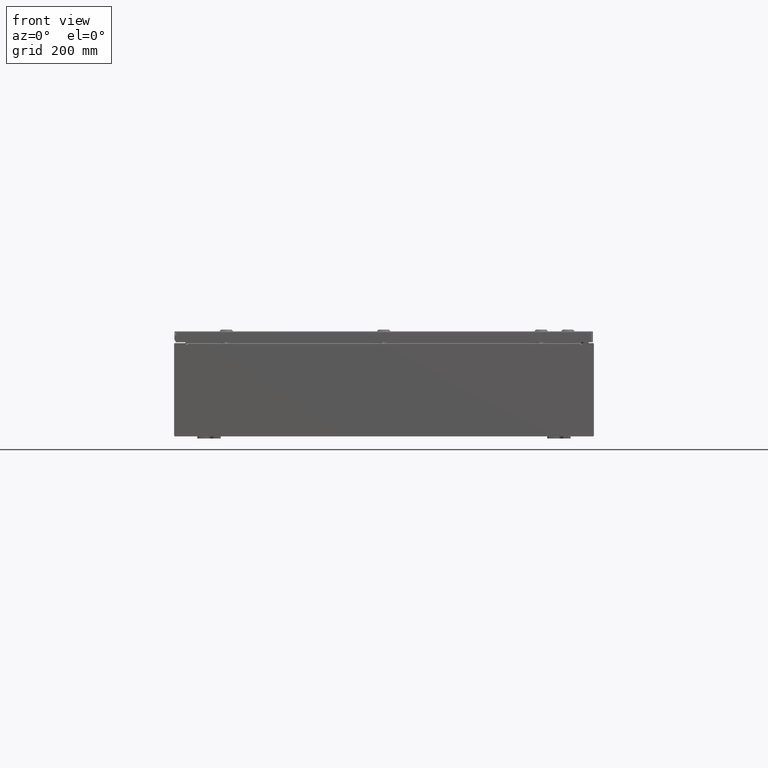
[diagram: clean part render]
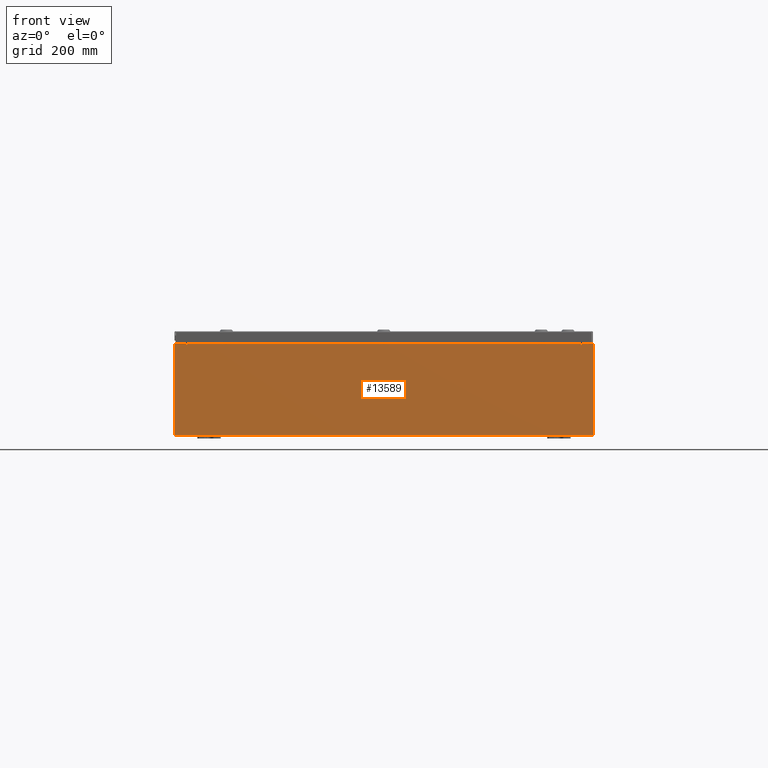
[diagram: same view with one face highlighted and labeled with its STEP entity id]
A machine part, front view. The second image highlights one B-rep face of the part: STEP entity #13589.
In plain terms, the highlighted planar face has unit normal (-0, 1, -0).
Its self-contained STEP definition (entity closure, byte-faithful):
#1474 = AXIS2_PLACEMENT_3D ( 'NONE', #19121, #56242, #24453 ) ;
#1745 = VECTOR ( 'NONE', #33750, 39.37007874015748100 ) ;
#1978 = ORIENTED_EDGE ( 'NONE', *, *, #43720, .F. ) ;
#3020 = EDGE_LOOP ( 'NONE', ( #27115, #24804, #62953, #52864, #46807, #1978, #29189, #66628, #40173, #34391, #40393, #59632 ) ) ;
#3277 = VECTOR ( 'NONE', #27596, 39.37007874015748100 ) ;
#3586 = CARTESIAN_POINT ( 'NONE',  ( -17.92529999999999600, 0.0000000000000000000, -3.925299999999999100 ) ) ;
#3717 = EDGE_CURVE ( 'NONE', #39019, #65286, #67553, .T. ) ;
#4491 = VERTEX_POINT ( 'NONE', #22559 ) ;
#5505 = VERTEX_POINT ( 'NONE', #30900 ) ;
#6012 = DIRECTION ( 'NONE',  ( 0.0000000000000000000, 0.0000000000000000000, 1.000000000000000000 ) ) ;
#6688 = EDGE_CURVE ( 'NONE', #4491, #15226, #21649, .T. ) ;
#10123 = LINE ( 'NONE', #23593, #38305 ) ;
#10305 = DIRECTION ( 'NONE',  ( 0.0000000000000000000, -1.000000000000000000, 0.0000000000000000000 ) ) ;
#10679 = DIRECTION ( 'NONE',  ( -0.0000000000000000000, 1.000000000000000000, -0.0000000000000000000 ) ) ;
#11382 = CARTESIAN_POINT ( 'NONE',  ( -17.92529999999999600, 0.0000000000000000000, 3.925300000000000500 ) ) ;
#13589 = ADVANCED_FACE ( 'NONE', ( #20309 ), #42037, .F. ) ;
#15226 = VERTEX_POINT ( 'NONE', #27175 ) ;
#15250 = LINE ( 'NONE', #53374, #27728 ) ;
#16670 = DIRECTION ( 'NONE',  ( -0.0000000000000000000, -0.0000000000000000000, 1.000000000000000000 ) ) ;
#19121 = CARTESIAN_POINT ( 'NONE',  ( -16.90587499999999500, 0.0000000000000000000, 3.874950000000000100 ) ) ;
#20309 = FACE_OUTER_BOUND ( 'NONE', #3020, .T. ) ;
#20640 = VERTEX_POINT ( 'NONE', #58938 ) ;
#20643 = AXIS2_PLACEMENT_3D ( 'NONE', #26043, #10305, #47387 ) ;
#21278 = VERTEX_POINT ( 'NONE', #64841 ) ;
#21649 = LINE ( 'NONE', #63214, #64075 ) ;
#21906 = EDGE_CURVE ( 'NONE', #40716, #20640, #43920, .T. ) ;
#21996 = LINE ( 'NONE', #58698, #50191 ) ;
#22402 = DIRECTION ( 'NONE',  ( 1.000000000000000000, 0.0000000000000000000, 0.0000000000000000000 ) ) ;
#22559 = CARTESIAN_POINT ( 'NONE',  ( -16.88719999999999300, 3.756290991288361700E-016, 3.912300000000000100 ) ) ;
#23593 = CARTESIAN_POINT ( 'NONE',  ( -16.88719999999999300, -0.0000000000000000000, 0.0000000000000000000 ) ) ;
#24453 = DIRECTION ( 'NONE',  ( 0.0000000000000000000, 0.0000000000000000000, -1.000000000000000000 ) ) ;
#24696 = CARTESIAN_POINT ( 'NONE',  ( 16.92455000000000400, 0.0000000000000000000, 3.925300000000000500 ) ) ;
#24804 = ORIENTED_EDGE ( 'NONE', *, *, #3717, .F. ) ;
#26043 = CARTESIAN_POINT ( 'NONE',  ( 0.0000000000000000000, 0.0000000000000000000, 0.0000000000000000000 ) ) ;
#26123 = CARTESIAN_POINT ( 'NONE',  ( -16.88719999999999300, -0.0000000000000000000, 3.874950000000000100 ) ) ;
#26890 = DIRECTION ( 'NONE',  ( -8.681145560800009800E-014, 0.0000000000000000000, -1.000000000000000000 ) ) ;
#27115 = ORIENTED_EDGE ( 'NONE', *, *, #39675, .F. ) ;
#27175 = CARTESIAN_POINT ( 'NONE',  ( 16.88720000000000700, 0.0000000000000000000, 3.912300000000000100 ) ) ;
#27596 = DIRECTION ( 'NONE',  ( 1.000000000000000000, 0.0000000000000000000, 0.0000000000000000000 ) ) ;
#27728 = VECTOR ( 'NONE', #32278, 39.37007874015748100 ) ;
#29189 = ORIENTED_EDGE ( 'NONE', *, *, #38401, .F. ) ;
#29450 = CARTESIAN_POINT ( 'NONE',  ( -17.92529999999999600, 0.0000000000000000000, 3.925300000000000500 ) ) ;
#29971 = LINE ( 'NONE', #60236, #1745 ) ;
#30900 = CARTESIAN_POINT ( 'NONE',  ( -16.92454999999999300, 0.0000000000000000000, 3.925300000000000500 ) ) ;
#31047 = CARTESIAN_POINT ( 'NONE',  ( 16.92455000000000400, 0.0000000000000000000, 3.874950000000000100 ) ) ;
#31149 = VERTEX_POINT ( 'NONE', #52206 ) ;
#31553 = VERTEX_POINT ( 'NONE', #29450 ) ;
#32278 = DIRECTION ( 'NONE',  ( 0.0000000000000000000, 0.0000000000000000000, 1.000000000000000000 ) ) ;
#33494 = EDGE_CURVE ( 'NONE', #21278, #54295, #29971, .T. ) ;
#33750 = DIRECTION ( 'NONE',  ( -1.000000000000000000, -0.0000000000000000000, -0.0000000000000000000 ) ) ;
#34246 = DIRECTION ( 'NONE',  ( 0.0000000000000000000, 0.0000000000000000000, -1.000000000000000000 ) ) ;
#34300 = CARTESIAN_POINT ( 'NONE',  ( -16.92454999999999300, 0.0000000000000000000, 3.874950000000000100 ) ) ;
#34391 = ORIENTED_EDGE ( 'NONE', *, *, #33494, .T. ) ;
#34683 = VECTOR ( 'NONE', #16670, 39.37007874015748100 ) ;
#35284 = VECTOR ( 'NONE', #22402, 39.37007874015748100 ) ;
#35988 = EDGE_CURVE ( 'NONE', #20640, #21278, #49542, .T. ) ;
#37941 = EDGE_CURVE ( 'NONE', #31553, #5505, #49395, .T. ) ;
#38305 = VECTOR ( 'NONE', #34246, 39.37007874015748100 ) ;
#38401 = EDGE_CURVE ( 'NONE', #40716, #56626, #21996, .T. ) ;
#39019 = VERTEX_POINT ( 'NONE', #26123 ) ;
#39675 = EDGE_CURVE ( 'NONE', #65286, #5505, #15250, .T. ) ;
#40173 = ORIENTED_EDGE ( 'NONE', *, *, #35988, .T. ) ;
#40393 = ORIENTED_EDGE ( 'NONE', *, *, #49308, .T. ) ;
#40716 = VERTEX_POINT ( 'NONE', #24696 ) ;
#42037 = PLANE ( 'NONE',  #20643 ) ;
#42384 = CARTESIAN_POINT ( 'NONE',  ( 16.90587500000000500, 0.0000000000000000000, 3.874950000000000100 ) ) ;
#42562 = AXIS2_PLACEMENT_3D ( 'NONE', #42384, #10679, #47753 ) ;
#42593 = EDGE_CURVE ( 'NONE', #31149, #15226, #63945, .T. ) ;
#43064 = CARTESIAN_POINT ( 'NONE',  ( 16.88720000000000700, 0.0000000000000000000, 0.0000000000000000000 ) ) ;
#43720 = EDGE_CURVE ( 'NONE', #56626, #31149, #57135, .T. ) ;
#43920 = LINE ( 'NONE', #59406, #3277 ) ;
#46807 = ORIENTED_EDGE ( 'NONE', *, *, #42593, .F. ) ;
#47113 = LINE ( 'NONE', #11382, #34683 ) ;
#47387 = DIRECTION ( 'NONE',  ( 0.0000000000000000000, -0.0000000000000000000, -1.000000000000000000 ) ) ;
#47753 = DIRECTION ( 'NONE',  ( 0.0000000000000000000, 0.0000000000000000000, -1.000000000000000000 ) ) ;
#49308 = EDGE_CURVE ( 'NONE', #54295, #31553, #47113, .T. ) ;
#49395 = LINE ( 'NONE', #53961, #35284 ) ;
#49542 = LINE ( 'NONE', #53305, #51185 ) ;
#49759 = VECTOR ( 'NONE', #6012, 39.37007874015748100 ) ;
#50191 = VECTOR ( 'NONE', #26890, 39.37007874015748100 ) ;
#51185 = VECTOR ( 'NONE', #53573, 39.37007874015748100 ) ;
#52206 = CARTESIAN_POINT ( 'NONE',  ( 16.88720000000000700, 0.0000000000000000000, 3.874950000000000100 ) ) ;
#52864 = ORIENTED_EDGE ( 'NONE', *, *, #6688, .T. ) ;
#53305 = CARTESIAN_POINT ( 'NONE',  ( 17.92530000000000400, 0.0000000000000000000, 3.925300000000000500 ) ) ;
#53374 = CARTESIAN_POINT ( 'NONE',  ( -16.92454999999999300, -0.0000000000000000000, 0.0000000000000000000 ) ) ;
#53573 = DIRECTION ( 'NONE',  ( 0.0000000000000000000, 0.0000000000000000000, -1.000000000000000000 ) ) ;
#53961 = CARTESIAN_POINT ( 'NONE',  ( -17.92529999999999600, 0.0000000000000000000, 3.925300000000000500 ) ) ;
#54295 = VERTEX_POINT ( 'NONE', #3586 ) ;
#56242 = DIRECTION ( 'NONE',  ( -0.0000000000000000000, 1.000000000000000000, -0.0000000000000000000 ) ) ;
#56626 = VERTEX_POINT ( 'NONE', #31047 ) ;
#57135 = CIRCLE ( 'NONE', #42562, 0.01867499999999949400 ) ;
#58698 = CARTESIAN_POINT ( 'NONE',  ( 16.92454999999967000, -0.0000000000000000000, -1.469244821010349400E-012 ) ) ;
#58938 = CARTESIAN_POINT ( 'NONE',  ( 17.92530000000000400, 0.0000000000000000000, 3.925300000000000500 ) ) ;
#59406 = CARTESIAN_POINT ( 'NONE',  ( -17.92529999999999600, 0.0000000000000000000, 3.925300000000000500 ) ) ;
#59632 = ORIENTED_EDGE ( 'NONE', *, *, #37941, .T. ) ;
#59925 = EDGE_CURVE ( 'NONE', #4491, #39019, #10123, .T. ) ;
#60236 = CARTESIAN_POINT ( 'NONE',  ( -17.92529999999999600, 0.0000000000000000000, -3.925299999999999100 ) ) ;
#62953 = ORIENTED_EDGE ( 'NONE', *, *, #59925, .F. ) ;
#63214 = CARTESIAN_POINT ( 'NONE',  ( -16.88719999999999600, 3.756290991288361700E-016, 3.912300000000000100 ) ) ;
#63945 = LINE ( 'NONE', #43064, #49759 ) ;
#64075 = VECTOR ( 'NONE', #68563, 39.37007874015748100 ) ;
#64841 = CARTESIAN_POINT ( 'NONE',  ( 17.92530000000000400, 0.0000000000000000000, -3.925299999999999100 ) ) ;
#65286 = VERTEX_POINT ( 'NONE', #34300 ) ;
#66628 = ORIENTED_EDGE ( 'NONE', *, *, #21906, .T. ) ;
#67553 = CIRCLE ( 'NONE', #1474, 0.01867499999999949400 ) ;
#68563 = DIRECTION ( 'NONE',  ( 1.000000000000000000, 0.0000000000000000000, 0.0000000000000000000 ) ) ;